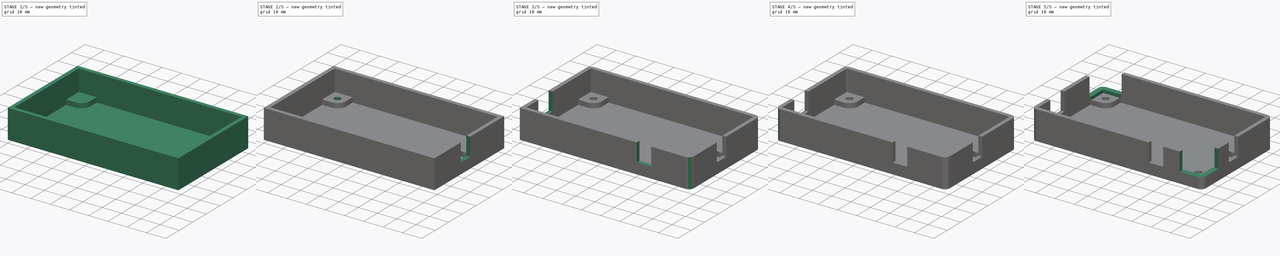
[diagram: build sequence overview — one tinted view per stage of 5, left to right]
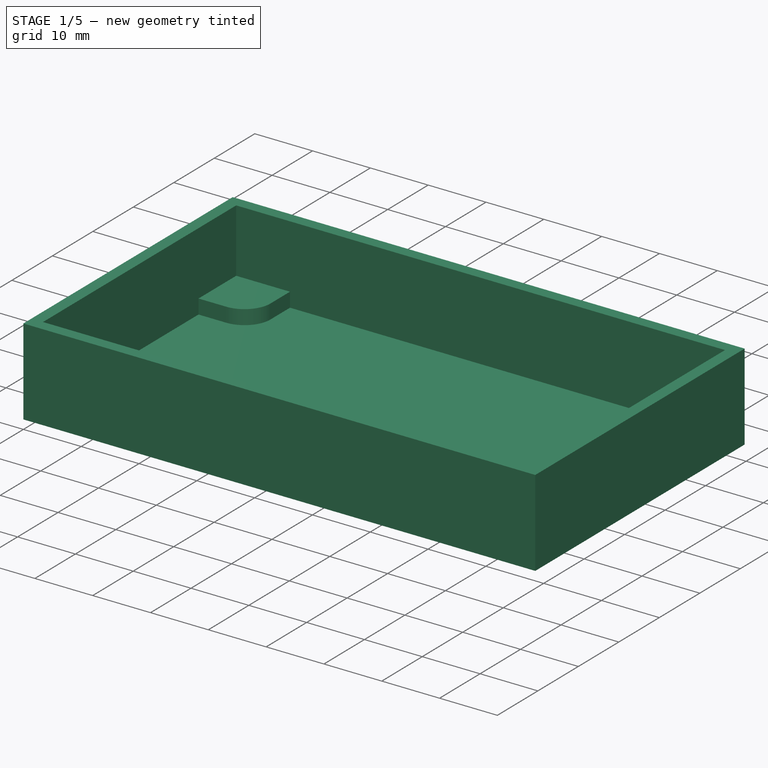
[diagram: stage 1 of 5 — iso view after this stage's code; geometry added in this stage tinted green]
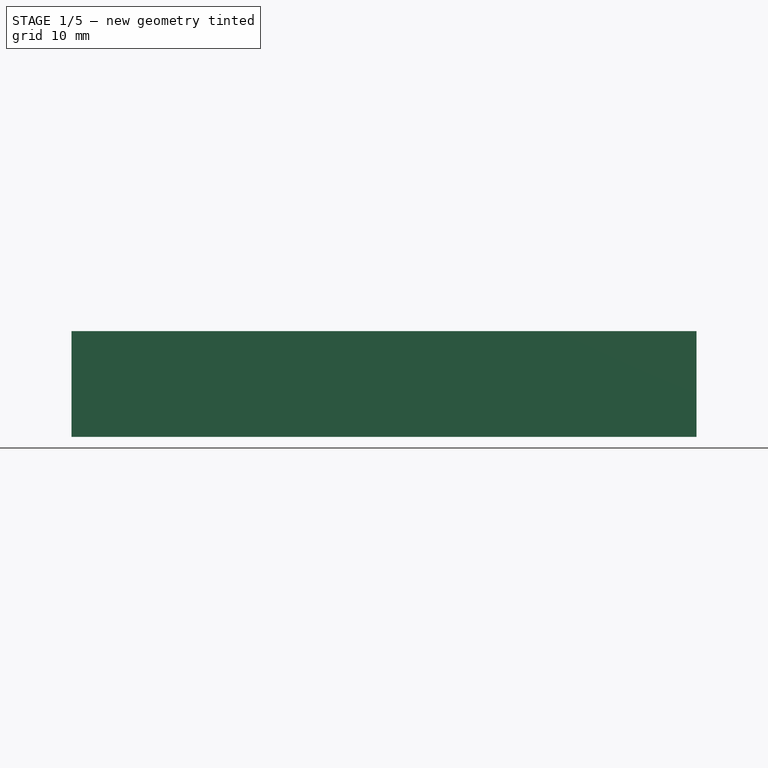
[diagram: stage 1 of 5 — front view after this stage's code; geometry added in this stage tinted green]
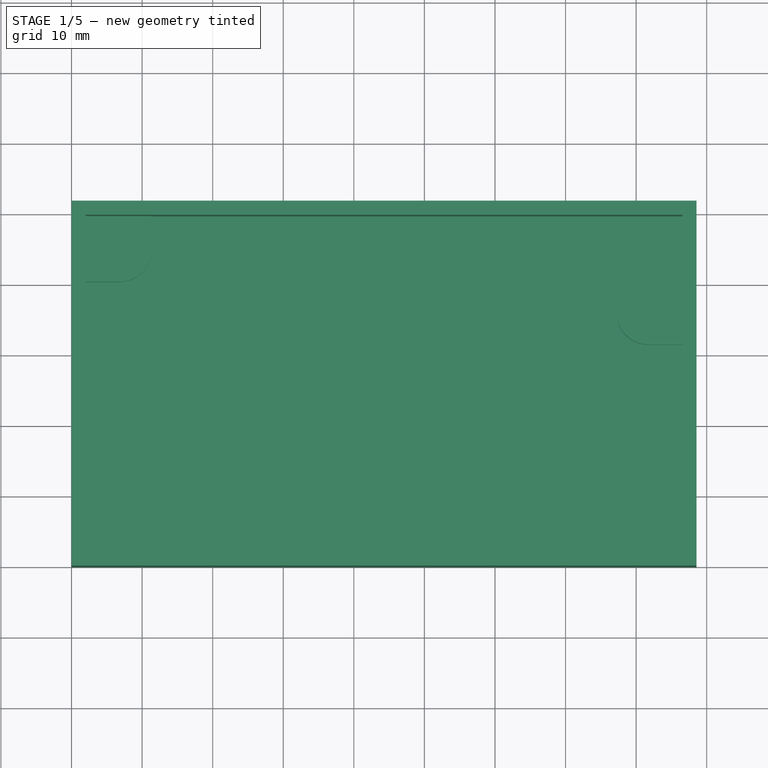
[diagram: stage 1 of 5 — top view after this stage's code; geometry added in this stage tinted green]
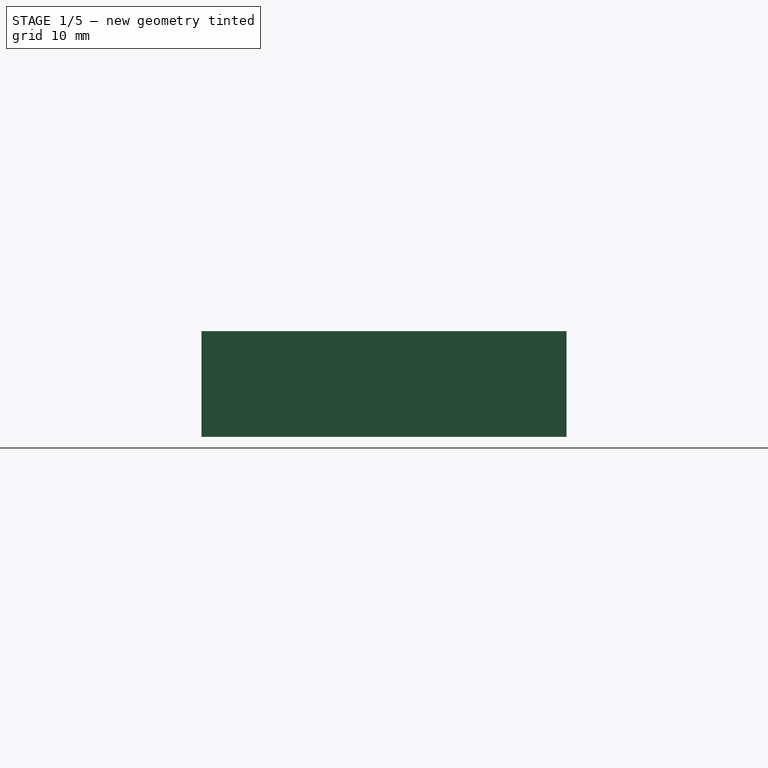
[diagram: stage 1 of 5 — right view after this stage's code; geometry added in this stage tinted green]
FCSTD DOCUMENT  (FreeCAD 0.18R16131 (Git))
Label: pidhousing
License: All rights reserved
LicenseURL: http://en.wikipedia.org/wiki/All_rights_reserved
objects: Sketcher::SketchObject×19, PartDesign::Pad×9, PartDesign::Fillet×8, PartDesign::Pocket×6, PartDesign::Hole×4, PartDesign::Body×1
note: 66 computed .brp shape members not serialized (recipe doc carries the construction recipe); baked Part::Feature solids carry a one-line shape summary decoded from their .brp

FEATURE [Sketcher::SketchObject] Sketch
  MapMode = 5
  Support = -> [XY_Plane001]
  sketch-geometry (4):
    g0: LineSegment StartX=0 StartY=0 StartZ=0 EndX=88.55 EndY=0 EndZ=0
    g1: LineSegment StartX=88.55 StartY=0 StartZ=0 EndX=88.55 EndY=51.72 EndZ=0
    g2: LineSegment StartX=88.55 StartY=51.72 StartZ=0 EndX=0 EndY=51.72 EndZ=0
    g3: LineSegment StartX=0 StartY=51.72 StartZ=0 EndX=0 EndY=0 EndZ=0
  constraints (11):
    c: Coincident(g0,g1)
    c: Coincident(g1,g2)
    c: Coincident(g2,g3)
    c: Coincident(g3,g0)
    c: Horizontal(g0)
    c: Horizontal(g2)
    c: Vertical(g1)
    c: Vertical(g3)
    c: Coincident(g0,g-1)
    c: DistanceX(g0,g0) = 88.55
    c: DistanceY(g3,g3) = 51.72
FEATURE [PartDesign::Pad] Pad
  Length = 15
  Length2 = 100
  Profile = -> Sketch
  Type = 0
FEATURE [Sketcher::SketchObject] Sketch001
  MapMode = 5
  Placement = pos=(0,0,15) rot=(0,0,1;0rad)
  Support = -> [Pad]
  sketch-geometry (4):
    g0: LineSegment StartX=2 StartY=2 StartZ=0 EndX=86.55 EndY=2 EndZ=0
    g1: LineSegment StartX=86.55 StartY=2 StartZ=0 EndX=86.55 EndY=49.72 EndZ=0
    g2: LineSegment StartX=86.55 StartY=49.72 StartZ=0 EndX=2 EndY=49.72 EndZ=0
    g3: LineSegment StartX=2 StartY=49.72 StartZ=0 EndX=2 EndY=2 EndZ=0
  constraints (12):
    c: Coincident(g0,g1)
    c: Coincident(g1,g2)
    c: Coincident(g2,g3)
    c: Coincident(g3,g0)
    c: Horizontal(g0)
    c: Horizontal(g2)
    c: Vertical(g1)
    c: Vertical(g3)
    c: DistanceX(g0,g0) = 84.55
    c: DistanceY(g1,g1) = 47.72
    c: DistanceY(g-1,g0) = 2
    c: DistanceX(g-2,g0) = 2
FEATURE [PartDesign::Pocket] Pocket
  BaseFeature = -> Pad
  Length = 13.5
  Length2 = 100
  Profile = -> Sketch001
  Type = 0
FEATURE [Sketcher::SketchObject] Sketch002
  MapMode = 5
  Placement = pos=(0,0,1.5) rot=(0,0,1;0rad)
  Support = -> [Pocket]
  sketch-geometry (5):
    g0: ArcOfCircle CenterX=6.81 CenterY=6.81 CenterZ=0 NormalX=0 NormalY=0 NormalZ=1 AngleXU=0 Radius=4.5 StartAngle=1e-16 EndAngle=1.5708
    g1: LineSegment StartX=11.31 StartY=6.81 StartZ=0 EndX=11.31 EndY=2 EndZ=0
    g2: LineSegment StartX=2 StartY=11.31 StartZ=0 EndX=6.81 EndY=11.31 EndZ=0
    g3: LineSegment StartX=2 StartY=2 StartZ=0 EndX=11.31 EndY=2 EndZ=0
    g4: LineSegment StartX=2 StartY=11.31 StartZ=0 EndX=2 EndY=2 EndZ=0
  constraints (17):
    c: Distance(g0,g-2) = 6.81
    c: Distance(g0,g-1) = 6.81
    c: Distance(g0,g-1) = 6.81
    c: Distance(g0,g-2) = 6.81
    c: Radius(g0) = 4.5
    c: Vertical(g1)
    c: Coincident(g1,g0)
    c: Horizontal(g2)
    c: Coincident(g2,g0)
    c: DistanceX(g2,g2) = 4.81
    c: DistanceY(g1,g1) = 4.81
    c: Horizontal(g3)
    c: Coincident(g1,g3)
    c: DistanceX(g3,g3) = 9.31
    c: Vertical(g4)
    c: Coincident(g4,g2)
    c: DistanceY(g4,g4) = 9.31
FEATURE [PartDesign::Pad] Pad001
  BaseFeature = -> Pocket
  Length = 2.5
  Length2 = 100
  Profile = -> Sketch002
  Type = 0
FEATURE [Sketcher::SketchObject] Sketch003
  MapMode = 5
  Placement = pos=(0,0,1.5) rot=(0,0,1;0rad)
  Support = -> [Pad001]
  sketch-geometry (5):
    g0: ArcOfCircle CenterX=6.81 CenterY=44.91 CenterZ=0 NormalX=0 NormalY=0 NormalZ=1 AngleXU=0 Radius=4.5 StartAngle=4.71239 EndAngle=6.28319
    g1: LineSegment StartX=11.31 StartY=44.91 StartZ=0 EndX=11.31 EndY=49.72 EndZ=0
    g2: LineSegment StartX=2 StartY=40.41 StartZ=0 EndX=6.81 EndY=40.41 EndZ=0
    g3: LineSegment StartX=2 StartY=49.72 StartZ=0 EndX=11.31 EndY=49.72 EndZ=0
    g4: LineSegment StartX=2 StartY=49.72 StartZ=0 EndX=2 EndY=40.41 EndZ=0
  constraints (16):
    c: Distance(g0,g-2) = 6.81
    c: Distance(g0,g-1) = 44.91
    c: Radius(g0) = 4.5
    c: DistanceY(g0,g0) = 0
    c: DistanceX(g0,g0) = 0
    c: Vertical(g1)
    c: Coincident(g1,g0)
    c: DistanceY(g1,g1) = 4.81
    c: Horizontal(g2)
    c: Coincident(g0,g2)
    c: DistanceX(g2,g2) = 4.81
    c: Horizontal(g3)
    c: Coincident(g1,g3)
    c: DistanceX(g3,g3) = 9.31
    c: Coincident(g4,g3)
    c: Coincident(g4,g2)
FEATURE [PartDesign::Pad] Pad002
  BaseFeature = -> Pad001
  Length = 2.5
  Length2 = 100
  Profile = -> Sketch003
  Type = 0
FEATURE [Sketcher::SketchObject] Sketch004
  MapMode = 5
  Placement = pos=(0,0,1.5) rot=(0,0,1;0rad)
  Support = -> [Pad002]
  sketch-geometry (4):
    g0: ArcOfCircle CenterX=81.74 CenterY=36.02 CenterZ=0 NormalX=0 NormalY=0 NormalZ=1 AngleXU=0 Radius=4.5 StartAngle=1.5708 EndAngle=4.71239
    g1: LineSegment StartX=81.74 StartY=31.52 StartZ=0 EndX=86.55 EndY=31.52 EndZ=0
    g2: LineSegment StartX=86.55 StartY=31.52 StartZ=0 EndX=86.55 EndY=40.52 EndZ=0
    g3: LineSegment StartX=81.74 StartY=40.52 StartZ=0 EndX=86.55 EndY=40.52 EndZ=0
  constraints (13):
    c: Distance(g0,g-1) = 36.02
    c: DistanceX(g0,g0) = 0
    c: Distance(g0,g-2) = 81.74
    c: Radius(g0) = 4.5
    c: Horizontal(g1)
    c: Coincident(g0,g1)
    c: DistanceX(g1,g1) = 4.81
    c: Vertical(g2)
    c: Coincident(g2,g1)
    c: DistanceY(g2,g2) = 9
    c: Coincident(g3,g2)
    c: Coincident(g3,g0)
    c: Horizontal(g3)
FEATURE [PartDesign::Pad] Pad003
  BaseFeature = -> Pad002
  Length = 2.5
  Length2 = 100
  Profile = -> Sketch004
  Type = 0
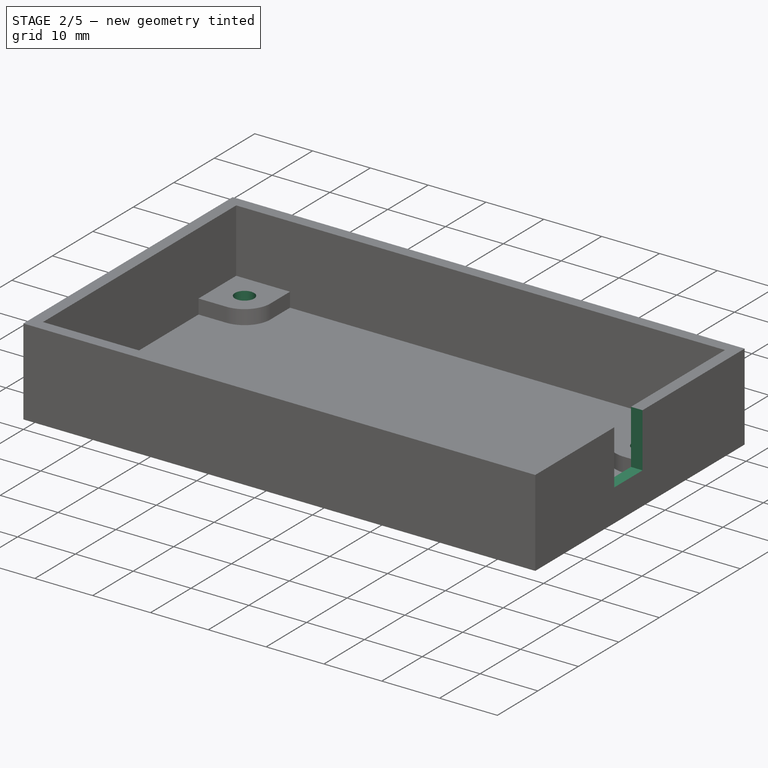
[diagram: stage 2 of 5 — iso view after this stage's code; geometry added in this stage tinted green]
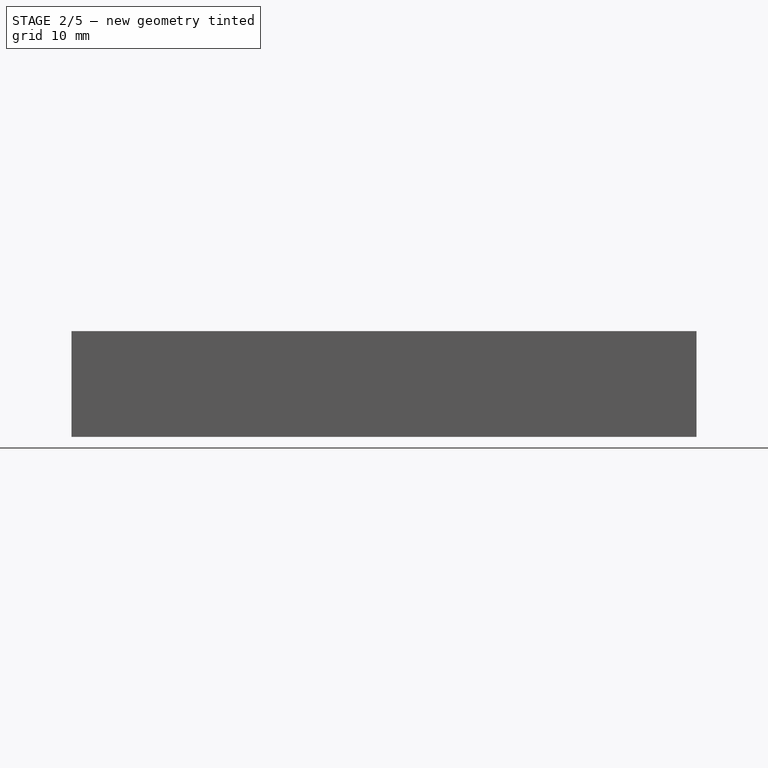
[diagram: stage 2 of 5 — front view after this stage's code; geometry added in this stage tinted green]
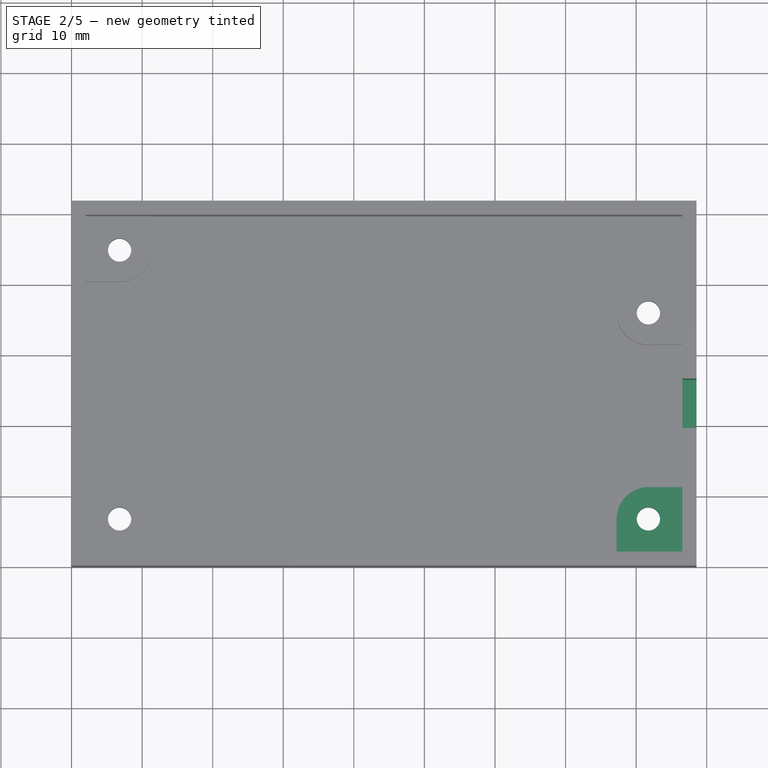
[diagram: stage 2 of 5 — top view after this stage's code; geometry added in this stage tinted green]
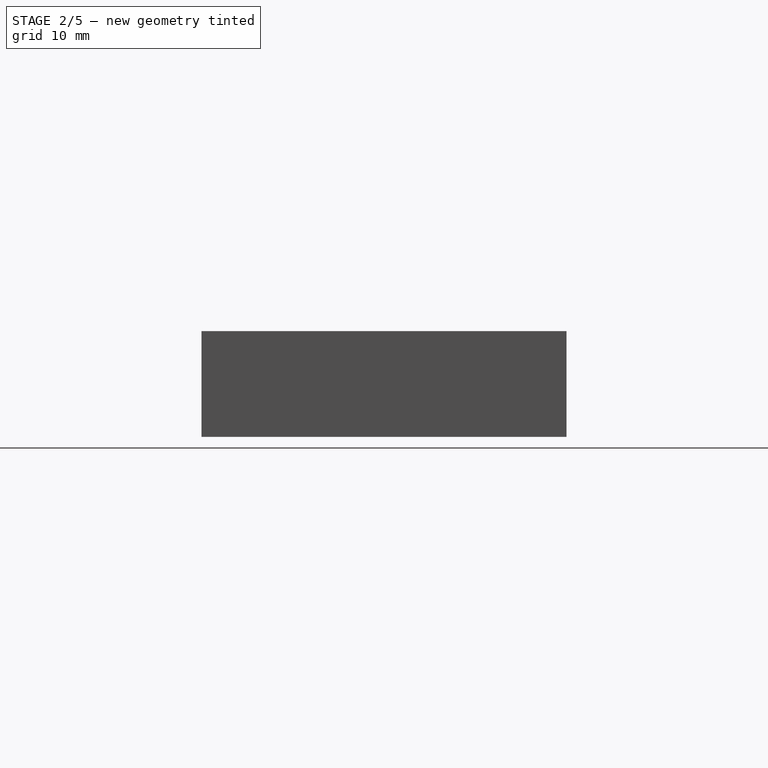
[diagram: stage 2 of 5 — right view after this stage's code; geometry added in this stage tinted green]
FEATURE [Sketcher::SketchObject] Sketch005
  MapMode = 5
  Placement = pos=(0,0,1.5) rot=(0,0,1;0rad)
  Support = -> [Pad003]
  sketch-geometry (5):
    g0: ArcOfCircle CenterX=81.74 CenterY=6.81 CenterZ=0 NormalX=0 NormalY=0 NormalZ=1 AngleXU=0 Radius=4.5 StartAngle=1.5708 EndAngle=3.14159
    g1: LineSegment StartX=81.74 StartY=11.31 StartZ=0 EndX=86.55 EndY=11.31 EndZ=0
    g2: LineSegment StartX=77.24 StartY=6.81 StartZ=0 EndX=77.24 EndY=2 EndZ=0
    g3: LineSegment StartX=77.24 StartY=2 StartZ=0 EndX=86.55 EndY=2 EndZ=0
    g4: LineSegment StartX=86.55 StartY=2 StartZ=0 EndX=86.55 EndY=11.31 EndZ=0
  constraints (16):
    c: DistanceY(g-1,g0) = 6.81
    c: DistanceX(g-1,g0) = 81.74
    c: DistanceX(g0,g0) = 0
    c: DistanceY(g0,g0) = 0
    c: Radius(g0) = 4.5
    c: Horizontal(g1)
    c: Vertical(g2)
    c: Coincident(g1,g0)
    c: Coincident(g2,g0)
    c: DistanceX(g1,g1) = 4.81
    c: DistanceY(g2,g2) = 4.81
    c: Horizontal(g3)
    c: Vertical(g4)
    c: Coincident(g4,g1)
    c: Coincident(g3,g2)
    c: Coincident(g3,g4)
FEATURE [PartDesign::Pad] Pad004
  BaseFeature = -> Pad003
  Length = 2.5
  Length2 = 100
  Profile = -> Sketch005
  Type = 0
FEATURE [Sketcher::SketchObject] Sketch006
  MapMode = 5
  Placement = pos=(0,0,4) rot=(0,0,1;0rad)
  Support = -> [Pad004]
  sketch-geometry (1):
    g0: Circle CenterX=6.81 CenterY=44.91 CenterZ=0 NormalX=0 NormalY=0 NormalZ=1 AngleXU=0 Radius=1.6
  constraints (3):
    c: DistanceX(g-2,g0) = 6.81
    c: DistanceY(g-1,g0) = 44.91
    c: Radius(g0) = 1.6
FEATURE [PartDesign::Hole] Hole
  BaseFeature = -> Pad004
  Depth = 25
  DepthType = 0
  Diameter = 3.3
  DrillPoint = 1
  DrillPointAngle = 118
  HoleCutCountersinkAngle = 90
  HoleCutDepth = 0
  HoleCutDiameter = 3
  HoleCutType = 0
  ModelActualThread = false
  Profile = -> Sketch006
  Tapered = false
  TaperedAngle = 90
  ThreadAngle = 60
  ThreadClass = 0
  ThreadCutOffInner = 0.0541266
  ThreadCutOffOuter = 0.108253
  ThreadDirection = 0
  ThreadFit = 0
  ThreadPitch = 0.5
  ThreadSize = 3
  ThreadType = 1
  Threaded = false
FEATURE [Sketcher::SketchObject] Sketch007
  MapMode = 5
  Placement = pos=(0,0,4) rot=(0,0,1;0rad)
  Support = -> [Hole]
  sketch-geometry (1):
    g0: Circle CenterX=6.81 CenterY=6.81 CenterZ=0 NormalX=0 NormalY=0 NormalZ=1 AngleXU=0 Radius=1.6
  constraints (3):
    c: DistanceX(g-1,g0) = 6.81
    c: DistanceY(g-1,g0) = 6.81
    c: Radius(g0) = 1.6
FEATURE [PartDesign::Hole] Hole001
  BaseFeature = -> Hole
  Depth = 25
  DepthType = 0
  Diameter = 3.3
  DrillPoint = 1
  DrillPointAngle = 118
  HoleCutCountersinkAngle = 90
  HoleCutDepth = 0
  HoleCutDiameter = 3
  HoleCutType = 0
  ModelActualThread = false
  Profile = -> Sketch007
  Tapered = false
  TaperedAngle = 90
  ThreadAngle = 0
  ThreadClass = 0
  ThreadCutOffInner = 0
  ThreadCutOffOuter = 0
  ThreadDirection = 0
  ThreadFit = 0
  ThreadPitch = 0
  ThreadSize = 3
  ThreadType = 1
  Threaded = false
FEATURE [Sketcher::SketchObject] Sketch008
  MapMode = 5
  Placement = pos=(0,0,4) rot=(0,0,1;0rad)
  Support = -> [Hole001]
  sketch-geometry (1):
    g0: Circle CenterX=81.74 CenterY=6.81 CenterZ=0 NormalX=0 NormalY=0 NormalZ=1 AngleXU=0 Radius=1.6
  constraints (3):
    c: DistanceY(g-1,g0) = 6.81
    c: DistanceX(g-1,g0) = 81.74
    c: Radius(g0) = 1.6
FEATURE [PartDesign::Hole] Hole002
  BaseFeature = -> Hole001
  Depth = 25
  DepthType = 0
  Diameter = 3.3
  DrillPoint = 1
  DrillPointAngle = 118
  HoleCutCountersinkAngle = 90
  HoleCutDepth = 0
  HoleCutDiameter = 3
  HoleCutType = 0
  ModelActualThread = false
  Profile = -> Sketch008
  Tapered = false
  TaperedAngle = 90
  ThreadAngle = 0
  ThreadClass = 0
  ThreadCutOffInner = 0
  ThreadCutOffOuter = 0
  ThreadDirection = 0
  ThreadFit = 0
  ThreadPitch = 0
  ThreadSize = 3
  ThreadType = 1
  Threaded = false
FEATURE [Sketcher::SketchObject] Sketch009
  MapMode = 5
  Placement = pos=(0,0,4) rot=(0,0,1;0rad)
  Support = -> [Hole002]
  sketch-geometry (1):
    g0: Circle CenterX=81.74 CenterY=36.02 CenterZ=0 NormalX=0 NormalY=0 NormalZ=1 AngleXU=0 Radius=1.6
  constraints (3):
    c: DistanceX(g-1,g0) = 81.74
    c: DistanceY(g-1,g0) = 36.02
    c: Radius(g0) = 1.6
FEATURE [PartDesign::Hole] Hole003
  BaseFeature = -> Hole002
  Depth = 25
  DepthType = 0
  Diameter = 3.3
  DrillPoint = 1
  DrillPointAngle = 118
  HoleCutCountersinkAngle = 90
  HoleCutDepth = 0
  HoleCutDiameter = 3
  HoleCutType = 0
  ModelActualThread = false
  Profile = -> Sketch009
  Tapered = false
  TaperedAngle = 90
  ThreadAngle = 60
  ThreadClass = 0
  ThreadCutOffInner = 0.0541266
  ThreadCutOffOuter = 0.108253
  ThreadDirection = 0
  ThreadFit = 0
  ThreadPitch = 0.5
  ThreadSize = 3
  ThreadType = 1
  Threaded = false
FEATURE [Sketcher::SketchObject] Sketch010
  MapMode = 5
  Placement = pos=(88.55,0,0) rot=(0.57735,0.57735,0.57735;2.0944rad)
  Support = -> [Hole003]
  sketch-geometry (4):
    g0: LineSegment StartX=19.5 StartY=25 StartZ=0 EndX=26.5 EndY=25 EndZ=0
    g1: LineSegment StartX=26.5 StartY=25 StartZ=0 EndX=26.5 EndY=5.6 EndZ=0
    g2: LineSegment StartX=26.5 StartY=5.6 StartZ=0 EndX=19.5 EndY=5.6 EndZ=0
    g3: LineSegment StartX=19.5 StartY=5.6 StartZ=0 EndX=19.5 EndY=25 EndZ=0
  constraints (12):
    c: Coincident(g0,g1)
    c: Coincident(g1,g2)
    c: Coincident(g2,g3)
    c: Coincident(g3,g0)
    c: Horizontal(g0)
    c: Horizontal(g2)
    c: Vertical(g1)
    c: Vertical(g3)
    c: DistanceX(g-2,g0) = 19.5
    c: DistanceX(g0,g0) = 7
    c: DistanceY(g-1,g0) = 25
    c: DistanceY(g-1,g1) = 5.6
FEATURE [PartDesign::Pocket] Pocket001
  BaseFeature = -> Hole003
  Length = 2
  Length2 = 100
  Profile = -> Sketch010
  Type = 0
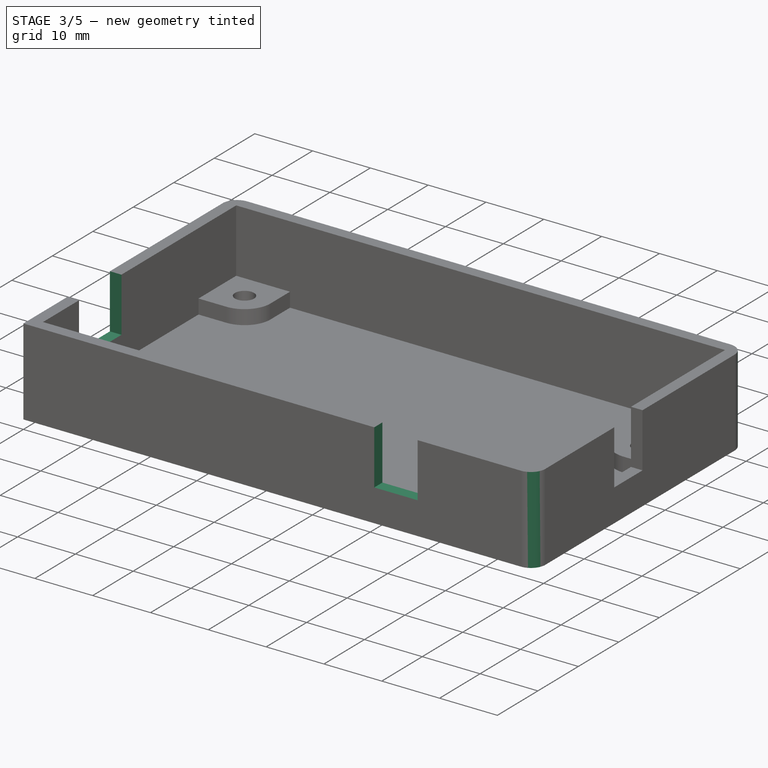
[diagram: stage 3 of 5 — iso view after this stage's code; geometry added in this stage tinted green]
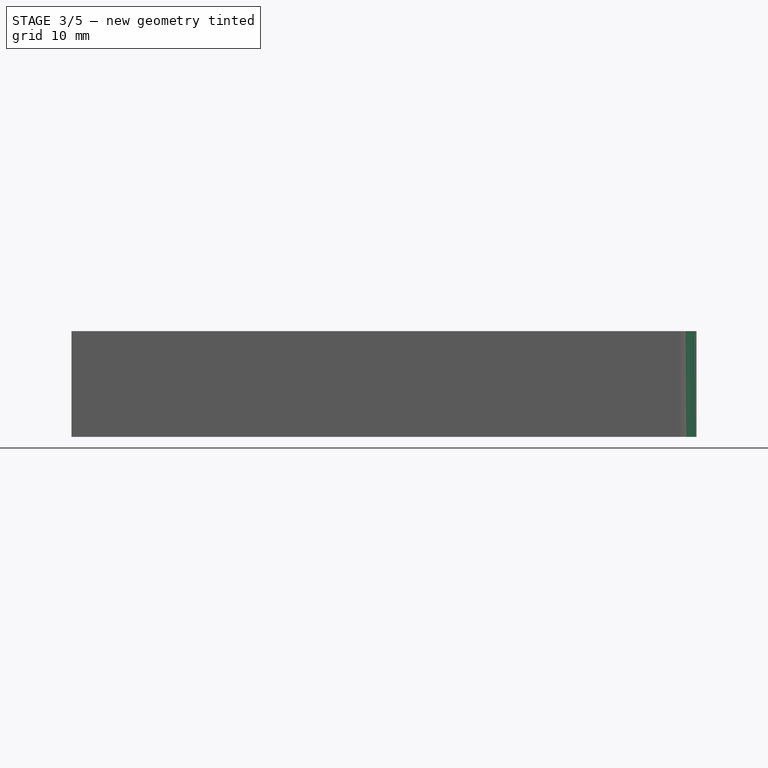
[diagram: stage 3 of 5 — front view after this stage's code; geometry added in this stage tinted green]
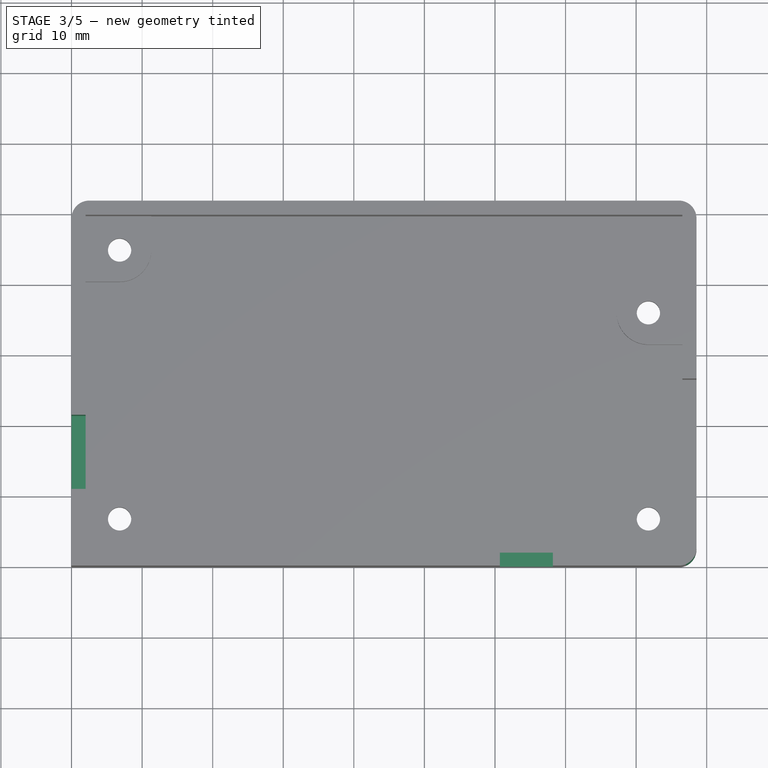
[diagram: stage 3 of 5 — top view after this stage's code; geometry added in this stage tinted green]
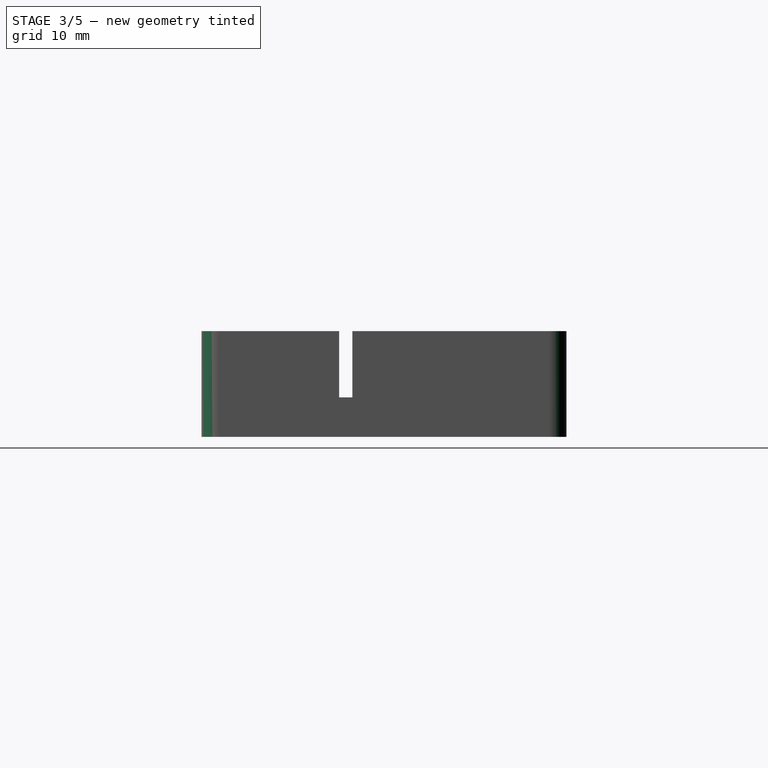
[diagram: stage 3 of 5 — right view after this stage's code; geometry added in this stage tinted green]
FEATURE [Sketcher::SketchObject] Sketch011
  MapMode = 5
  Placement = pos=(0,0,0) rot=(0.57735,-0.57735,-0.57735;2.0944rad)
  Support = -> [Pocket001]
  sketch-geometry (4):
    g0: LineSegment StartX=-21.375 StartY=25 StartZ=0 EndX=-10.875 EndY=25 EndZ=0
    g1: LineSegment StartX=-10.875 StartY=25 StartZ=0 EndX=-10.875 EndY=5.6 EndZ=0
    g2: LineSegment StartX=-10.875 StartY=5.6 StartZ=0 EndX=-21.375 EndY=5.6 EndZ=0
    g3: LineSegment StartX=-21.375 StartY=5.6 StartZ=0 EndX=-21.375 EndY=25 EndZ=0
  constraints (12):
    c: Coincident(g0,g1)
    c: Coincident(g1,g2)
    c: Coincident(g2,g3)
    c: Coincident(g3,g0)
    c: Horizontal(g0)
    c: Horizontal(g2)
    c: Vertical(g1)
    c: Vertical(g3)
    c: DistanceX(g0,g-1) = 10.875
    c: DistanceX(g0,g0) = 10.5
    c: DistanceY(g-1,g0) = 25
    c: DistanceY(g-1,g1) = 5.6
FEATURE [PartDesign::Pocket] Pocket002
  BaseFeature = -> Pocket001
  Length = 2
  Length2 = 100
  Profile = -> Sketch011
  Type = 0
FEATURE [Sketcher::SketchObject] Sketch012
  MapMode = 5
  Placement = pos=(0,0,0) rot=(1,0,0;1.5708rad)
  Support = -> [Pocket002]
  sketch-geometry (4):
    g0: LineSegment StartX=60.7 StartY=25 StartZ=0 EndX=68.2 EndY=25 EndZ=0
    g1: LineSegment StartX=68.2 StartY=25 StartZ=0 EndX=68.2 EndY=5.6 EndZ=0
    g2: LineSegment StartX=68.2 StartY=5.6 StartZ=0 EndX=60.7 EndY=5.6 EndZ=0
    g3: LineSegment StartX=60.7 StartY=5.6 StartZ=0 EndX=60.7 EndY=25 EndZ=0
  constraints (12):
    c: Coincident(g0,g1)
    c: Coincident(g1,g2)
    c: Coincident(g2,g3)
    c: Coincident(g3,g0)
    c: Horizontal(g0)
    c: Horizontal(g2)
    c: Vertical(g1)
    c: Vertical(g3)
    c: DistanceX(g-1,g0) = 60.7
    c: DistanceX(g0,g0) = 7.5
    c: DistanceY(g-1,g0) = 25
    c: DistanceY(g-1,g1) = 5.6
FEATURE [PartDesign::Pocket] Pocket003
  BaseFeature = -> Pocket002
  Length = 2
  Length2 = 100
  Profile = -> Sketch012
  Type = 0
FEATURE [PartDesign::Fillet] Fillet
  Base = -> Pocket003 [Edge2]
  BaseFeature = -> Pocket003
  Radius = 2.5
FEATURE [PartDesign::Fillet] Fillet001
  Base = -> Fillet [Edge39]
  BaseFeature = -> Fillet
  Radius = 2.5
FEATURE [PartDesign::Fillet] Fillet002
  Base = -> Fillet001 [Edge22]
  BaseFeature = -> Fillet001
  Radius = 2.5
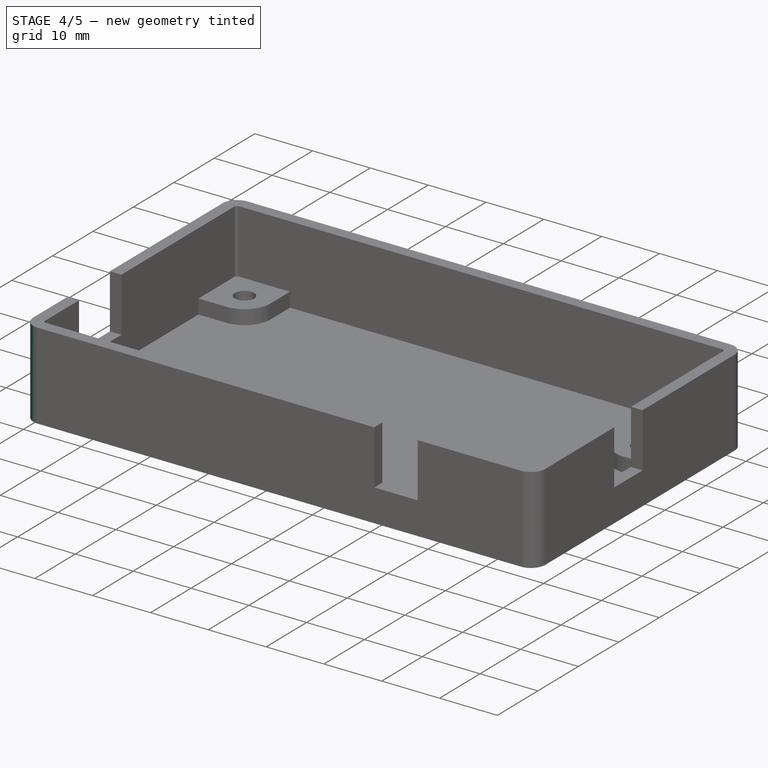
[diagram: stage 4 of 5 — iso view after this stage's code; geometry added in this stage tinted green]
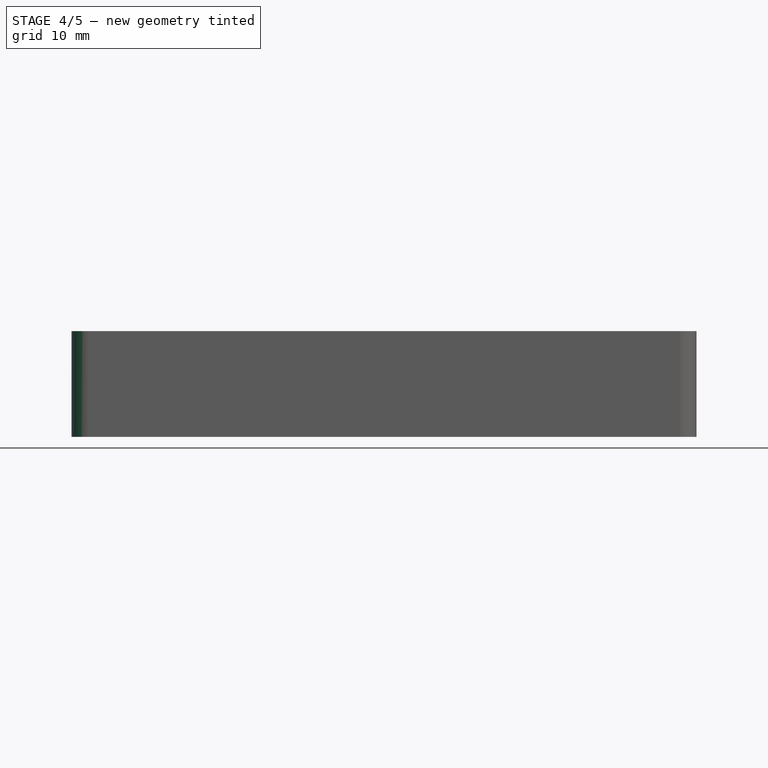
[diagram: stage 4 of 5 — front view after this stage's code; geometry added in this stage tinted green]
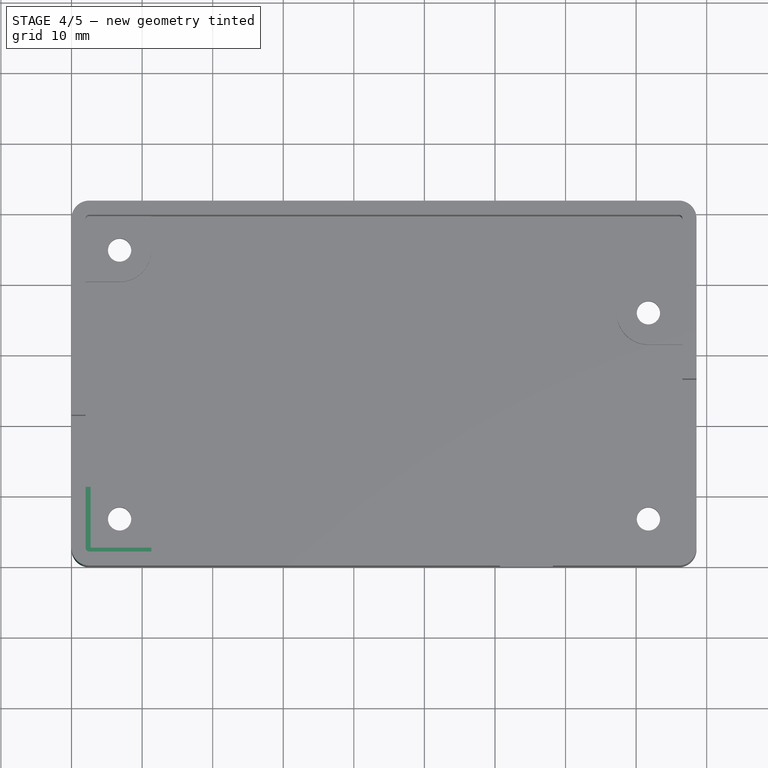
[diagram: stage 4 of 5 — top view after this stage's code; geometry added in this stage tinted green]
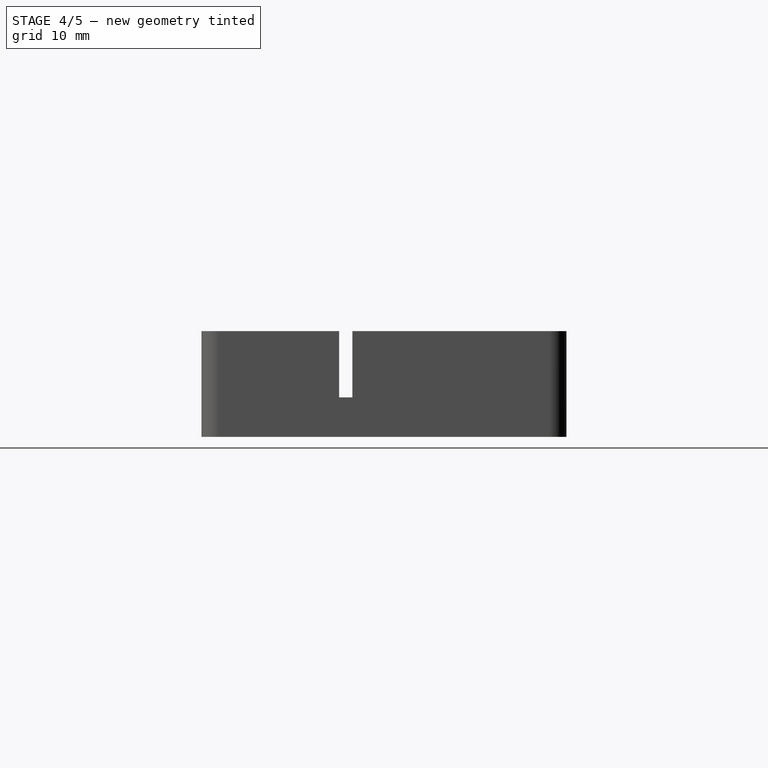
[diagram: stage 4 of 5 — right view after this stage's code; geometry added in this stage tinted green]
FEATURE [PartDesign::Fillet] Fillet003
  Base = -> Fillet002 [Edge19]
  BaseFeature = -> Fillet002
  Radius = 2.5
FEATURE [PartDesign::Fillet] Fillet004
  Base = -> Fillet003 [Edge105]
  BaseFeature = -> Fillet003
  Radius = 0.5
FEATURE [PartDesign::Fillet] Fillet005
  Base = -> Fillet004 [Edge21]
  BaseFeature = -> Fillet004
  Radius = 0.5
FEATURE [PartDesign::Fillet] Fillet006
  Base = -> Fillet005 [Edge74]
  BaseFeature = -> Fillet005
  Radius = 0.5
FEATURE [PartDesign::Fillet] Fillet007
  Base = -> Fillet006 [Edge71]
  BaseFeature = -> Fillet006
  Radius = 0.5
FEATURE [Sketcher::SketchObject] Sketch013
  MapMode = 5
  Placement = pos=(0,0,4) rot=(0,0,1;0rad)
  Support = -> [Fillet007]
  sketch-geometry (6):
    g0: LineSegment StartX=2.7 StartY=11.31 StartZ=0 EndX=2.7 EndY=2.7 EndZ=0
    g1: LineSegment StartX=2.7 StartY=2.7 StartZ=0 EndX=11.31 EndY=2.7 EndZ=0
    g2: LineSegment StartX=11.31 StartY=2.7 StartZ=0 EndX=11.31 EndY=2 EndZ=0
    g3: LineSegment StartX=11.31 StartY=2 StartZ=0 EndX=2 EndY=2 EndZ=0
    g4: LineSegment StartX=2 StartY=2 StartZ=0 EndX=2 EndY=11.31 EndZ=0
    g5: LineSegment StartX=2 StartY=11.31 StartZ=0 EndX=2.7 EndY=11.31 EndZ=0
  constraints (18):
    c: Vertical(g0)
    c: Coincident(g1,g0)
    c: Horizontal(g1)
    c: Coincident(g2,g1)
    c: Vertical(g2)
    c: Coincident(g3,g2)
    c: Horizontal(g3)
    c: Coincident(g4,g3)
    c: Vertical(g4)
    c: Coincident(g5,g4)
    c: Coincident(g5,g0)
    c: Horizontal(g5)
    c: DistanceY(g2,g2) = 0.7
    c: DistanceX(g5,g5) = 0.7
    c: DistanceX(g-1,g4) = 2
    c: DistanceY(g-1,g2) = 2
    c: DistanceX(g3,g3) = 9.31
    c: DistanceY(g4,g4) = 9.31
FEATURE [PartDesign::Pad] Pad005
  BaseFeature = -> Fillet007
  Length = 1.6
  Length2 = 100
  Profile = -> Sketch013
  Type = 0
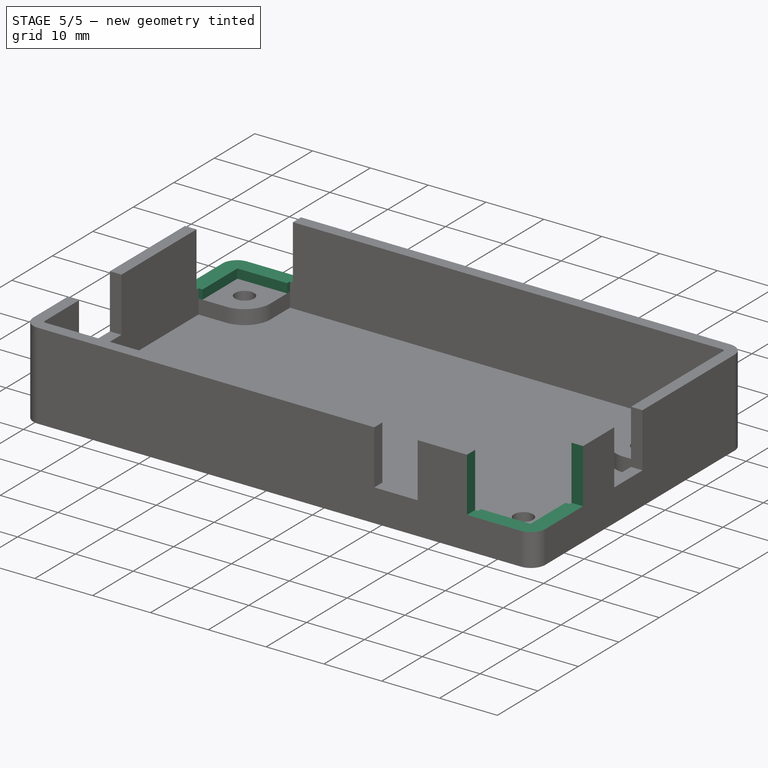
[diagram: stage 5 of 5 — iso view after this stage's code; geometry added in this stage tinted green]
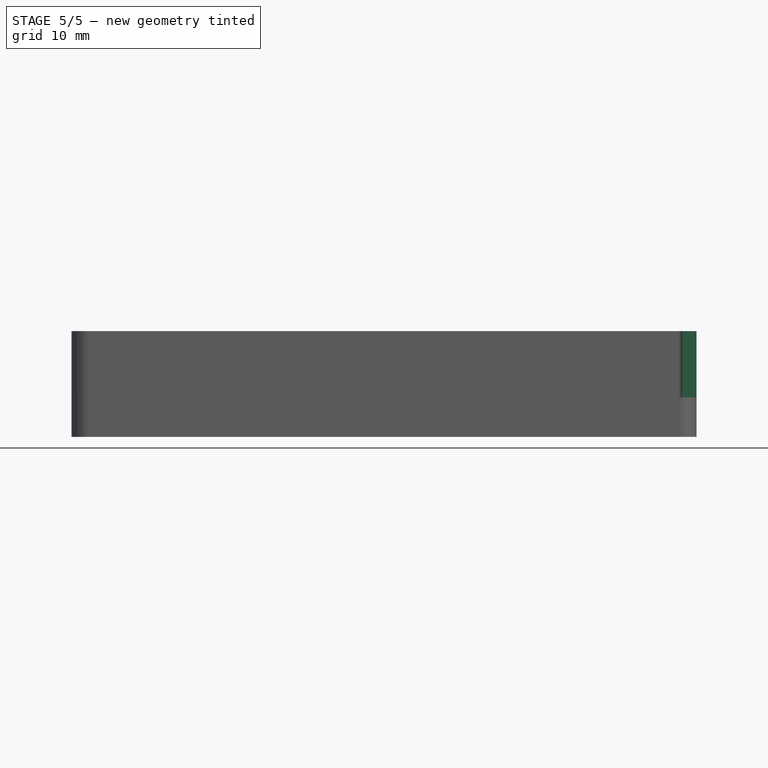
[diagram: stage 5 of 5 — front view after this stage's code; geometry added in this stage tinted green]
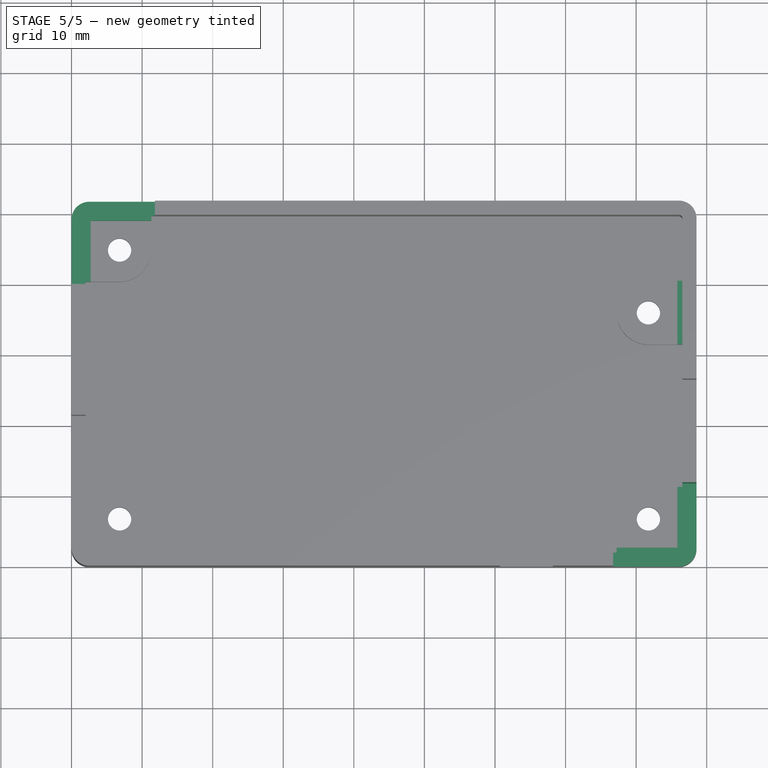
[diagram: stage 5 of 5 — top view after this stage's code; geometry added in this stage tinted green]
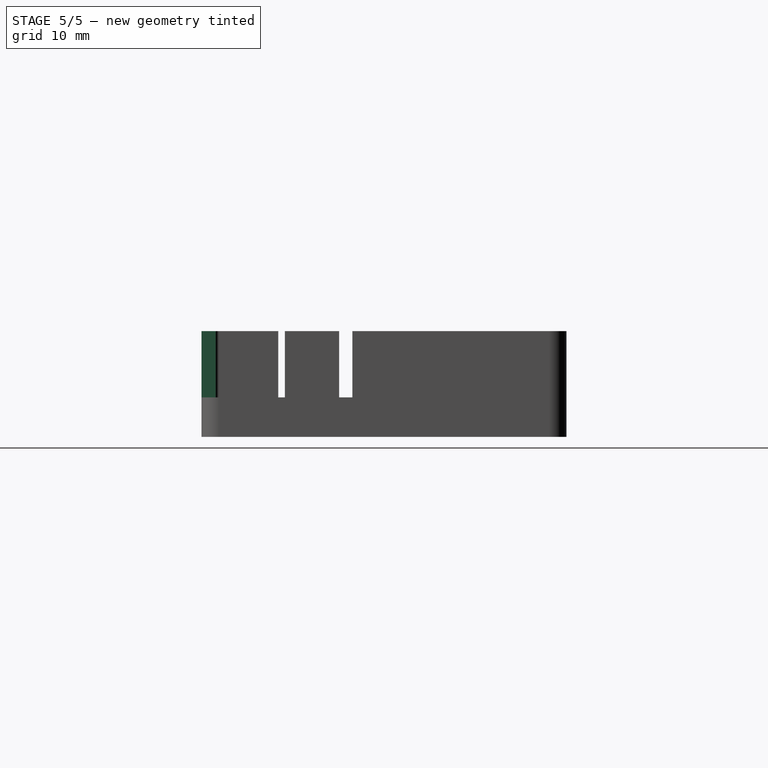
[diagram: stage 5 of 5 — right view after this stage's code; geometry added in this stage tinted green]
FEATURE [Sketcher::SketchObject] Sketch014
  MapMode = 5
  Placement = pos=(0,0,4) rot=(0,0,1;0rad)
  Support = -> [Pad005]
  sketch-geometry (6):
    g0: LineSegment StartX=2.7 StartY=40.41 StartZ=0 EndX=2.7 EndY=49.02 EndZ=0
    g1: LineSegment StartX=2.7 StartY=49.02 StartZ=0 EndX=11.31 EndY=49.02 EndZ=0
    g2: LineSegment StartX=11.31 StartY=49.02 StartZ=0 EndX=11.31 EndY=49.72 EndZ=0
    g3: LineSegment StartX=11.31 StartY=49.72 StartZ=0 EndX=2 EndY=49.72 EndZ=0
    g4: LineSegment StartX=2 StartY=49.72 StartZ=0 EndX=2 EndY=40.41 EndZ=0
    g5: LineSegment StartX=2 StartY=40.41 StartZ=0 EndX=2.7 EndY=40.41 EndZ=0
  constraints (18):
    c: Vertical(g0)
    c: Coincident(g1,g0)
    c: Horizontal(g1)
    c: Coincident(g2,g1)
    c: Vertical(g2)
    c: Coincident(g3,g2)
    c: Horizontal(g3)
    c: Coincident(g4,g3)
    c: Vertical(g4)
    c: Coincident(g5,g4)
    c: Coincident(g5,g0)
    c: Horizontal(g5)
    c: DistanceX(g-1,g4) = 2
    c: DistanceY(g-1,g2) = 49.72
    c: DistanceY(g2,g2) = 0.7
    c: DistanceX(g5,g5) = 0.7
    c: DistanceX(g3,g3) = 9.31
    c: DistanceY(g4,g4) = 9.31
FEATURE [PartDesign::Pad] Pad006
  BaseFeature = -> Pad005
  Length = 1.6
  Length2 = 100
  Profile = -> Sketch014
  Type = 0
FEATURE [Sketcher::SketchObject] Sketch015
  MapMode = 5
  Placement = pos=(0,0,4) rot=(0,0,1;0rad)
  Support = -> [Pad006]
  sketch-geometry (6):
    g0: LineSegment StartX=85.85 StartY=11.31 StartZ=0 EndX=85.85 EndY=2.7 EndZ=0
    g1: LineSegment StartX=85.85 StartY=2.7 StartZ=0 EndX=77.24 EndY=2.7 EndZ=0
    g2: LineSegment StartX=77.24 StartY=2.7 StartZ=0 EndX=77.24 EndY=2 EndZ=0
    g3: LineSegment StartX=77.24 StartY=2 StartZ=0 EndX=86.55 EndY=2 EndZ=0
    g4: LineSegment StartX=86.55 StartY=2 StartZ=0 EndX=86.55 EndY=11.31 EndZ=0
    g5: LineSegment StartX=86.55 StartY=11.31 StartZ=0 EndX=85.85 EndY=11.31 EndZ=0
  constraints (18):
    c: Vertical(g0)
    c: Coincident(g1,g0)
    c: Horizontal(g1)
    c: Coincident(g2,g1)
    c: Vertical(g2)
    c: Coincident(g3,g2)
    c: Horizontal(g3)
    c: Vertical(g4)
    c: Coincident(g5,g4)
    c: Coincident(g5,g0)
    c: Coincident(g3,g4)
    c: Horizontal(g5)
    c: DistanceY(g2,g2) = 0.7
    c: DistanceX(g5,g5) = 0.7
    c: DistanceY(g4,g4) = 9.31
    c: DistanceX(g3,g3) = 9.31
    c: DistanceY(g-1,g3) = 2
    c: DistanceX(g-1,g3) = 86.55
FEATURE [PartDesign::Pad] Pad007
  BaseFeature = -> Pad006
  Length = 1.6
  Length2 = 100
  Profile = -> Sketch015
  Type = 0
FEATURE [Sketcher::SketchObject] Sketch016
  MapMode = 5
  Placement = pos=(0,0,4) rot=(0,0,1;0rad)
  Support = -> [Pad007]
  sketch-geometry (4):
    g0: LineSegment StartX=85.85 StartY=40.52 StartZ=0 EndX=86.55 EndY=40.52 EndZ=0
    g1: LineSegment StartX=86.55 StartY=40.52 StartZ=0 EndX=86.55 EndY=31.52 EndZ=0
    g2: LineSegment StartX=86.55 StartY=31.52 StartZ=0 EndX=85.85 EndY=31.52 EndZ=0
    g3: LineSegment StartX=85.85 StartY=31.52 StartZ=0 EndX=85.85 EndY=40.52 EndZ=0
  constraints (12):
    c: Coincident(g0,g1)
    c: Coincident(g1,g2)
    c: Coincident(g2,g3)
    c: Coincident(g3,g0)
    c: Horizontal(g0)
    c: Horizontal(g2)
    c: Vertical(g1)
    c: Vertical(g3)
    c: DistanceX(g-1,g0) = 86.55
    c: DistanceX(g0,g0) = 0.7
    c: DistanceY(g3,g3) = 9
    c: DistanceY(g-1,g2) = 31.52
FEATURE [PartDesign::Pad] Pad008
  BaseFeature = -> Pad007
  Length = 1.6
  Length2 = 100
  Profile = -> Sketch016
  Type = 0
FEATURE [Sketcher::SketchObject] Sketch017
  ExternalGeometry = -> [Sketch]
  MapMode = 5
  Placement = pos=(0,0,15) rot=(0,0,1;0rad)
  Support = -> [Pad008]
  sketch-geometry (4):
    g0: LineSegment StartX=0 StartY=39.91 StartZ=0 EndX=11.81 EndY=39.91 EndZ=0
    g1: LineSegment StartX=11.81 StartY=39.91 StartZ=0 EndX=11.81 EndY=51.72 EndZ=0
    g2: LineSegment StartX=11.81 StartY=51.72 StartZ=0 EndX=0 EndY=51.72 EndZ=0
    g3: LineSegment StartX=0 StartY=51.72 StartZ=0 EndX=0 EndY=39.91 EndZ=0
  constraints (12):
    c: Coincident(g0,g1)
    c: Coincident(g1,g2)
    c: Coincident(g2,g3)
    c: Coincident(g3,g0)
    c: Horizontal(g0)
    c: Horizontal(g2)
    c: Vertical(g1)
    c: Vertical(g3)
    c: DistanceX(g-2,g1) = 11.81
    c: DistanceY(g0,g-3) = 11.81
    c: DistanceX(g2,g-3) = 0
    c: DistanceY(g-3,g2) = 0
FEATURE [PartDesign::Pocket] Pocket004
  BaseFeature = -> Pad008
  Length = 9.4
  Length2 = 100
  Profile = -> Sketch017
  Type = 0
FEATURE [Sketcher::SketchObject] Sketch018
  ExternalGeometry = -> [Sketch]
  MapMode = 5
  Placement = pos=(0,0,15) rot=(0,0,1;0rad)
  Support = -> [Pocket004]
  sketch-geometry (4):
    g0: LineSegment StartX=76.74 StartY=11.81 StartZ=0 EndX=88.55 EndY=11.81 EndZ=0
    g1: LineSegment StartX=88.55 StartY=11.81 StartZ=0 EndX=88.55 EndY=0 EndZ=0
    g2: LineSegment StartX=88.55 StartY=0 StartZ=0 EndX=76.74 EndY=0 EndZ=0
    g3: LineSegment StartX=76.74 StartY=0 StartZ=0 EndX=76.74 EndY=11.81 EndZ=0
  constraints (11):
    c: Coincident(g0,g1)
    c: Coincident(g1,g2)
    c: Coincident(g2,g3)
    c: Coincident(g3,g0)
    c: Horizontal(g0)
    c: Horizontal(g2)
    c: Vertical(g1)
    c: Vertical(g3)
    c: Coincident(g1,g-3)
    c: DistanceX(g0,g0) = 11.81
    c: DistanceY(g3,g3) = 11.81
FEATURE [PartDesign::Pocket] Pocket005
  BaseFeature = -> Pocket004
  Length = 9.4
  Length2 = 100
  Profile = -> Sketch018
  Type = 0
FEATURE [PartDesign::Body] Body001
  Group = -> [Sketch,Pad,Sketch001,Pocket,Sketch002,Pad001,Sketch003,Pad002,Sketch004,Pad003,Sketch005,Pad004,Sketch006,Hole,Sketch007,Hole001,Sketch008,Hole002,Sketch009,Hole003,Sketch010,Pocket001,Sketch011,Pocket002,Sketch012,Pocket003,Fillet,Fillet001,Fillet002,Fillet003,Fillet004,Fillet005,Fillet006,Fillet007,Sketch013,Pad005,Sketch014,Pad006,Sketch015,Pad007,Sketch016,Pad008,Sketch017,Pocket004,Sketch018,+1 more]
  Origin = -> Origin001
  Tip = -> Pocket005
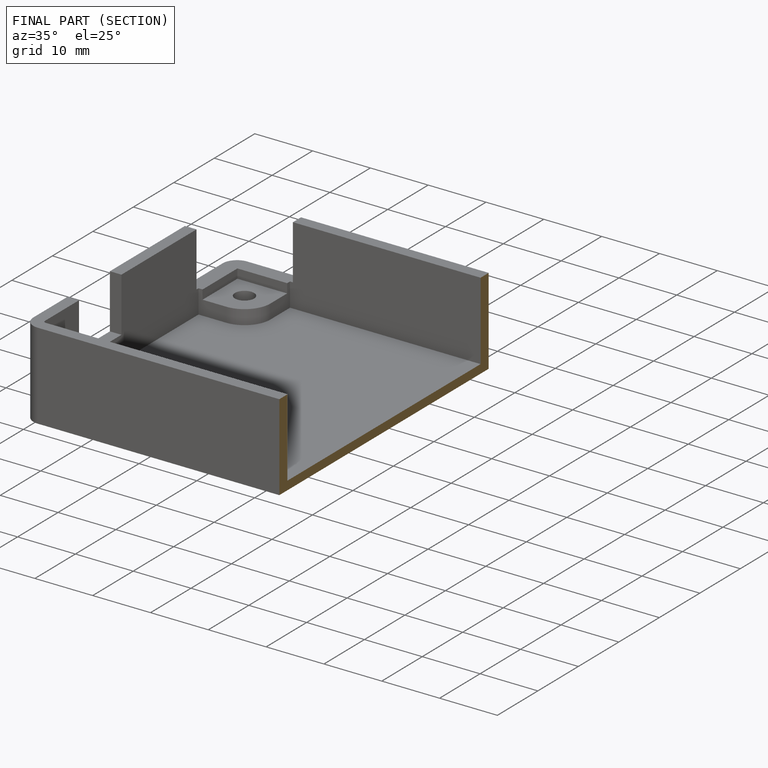
[diagram: finished part — half-section view (interior)]
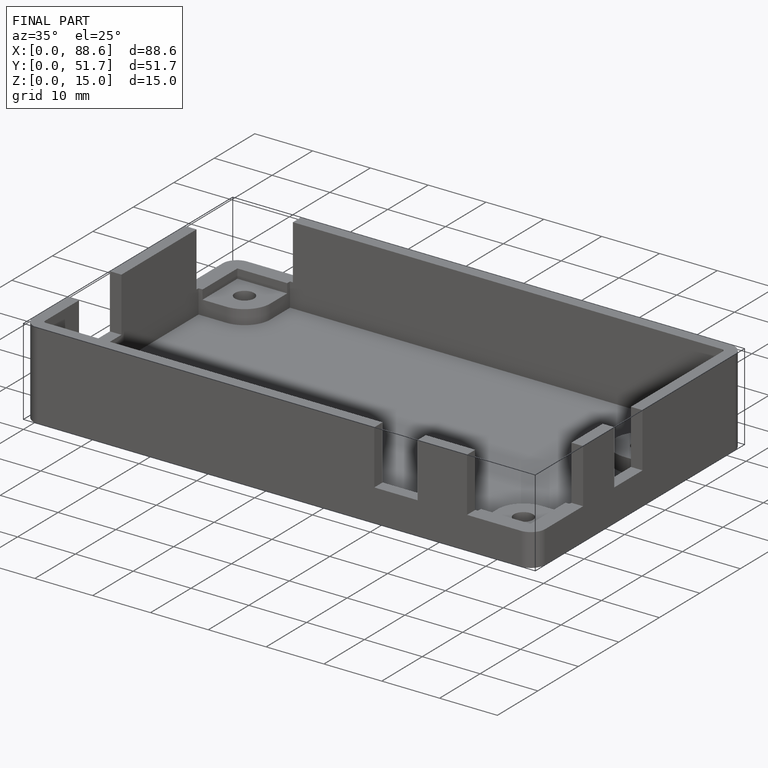
[diagram: finished part — iso view with bounding-box wireframe]
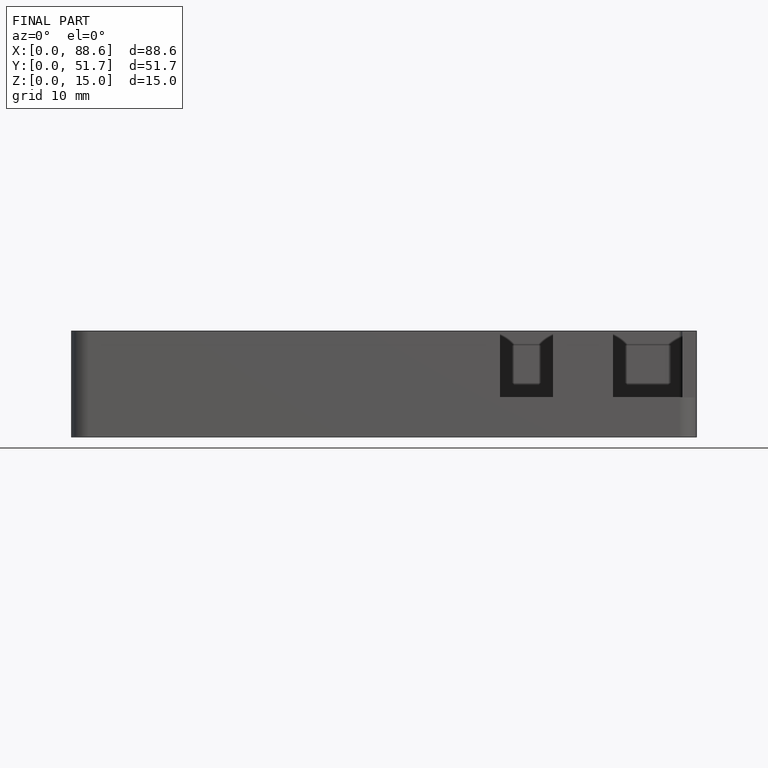
[diagram: finished part — front view with bounding-box wireframe]
